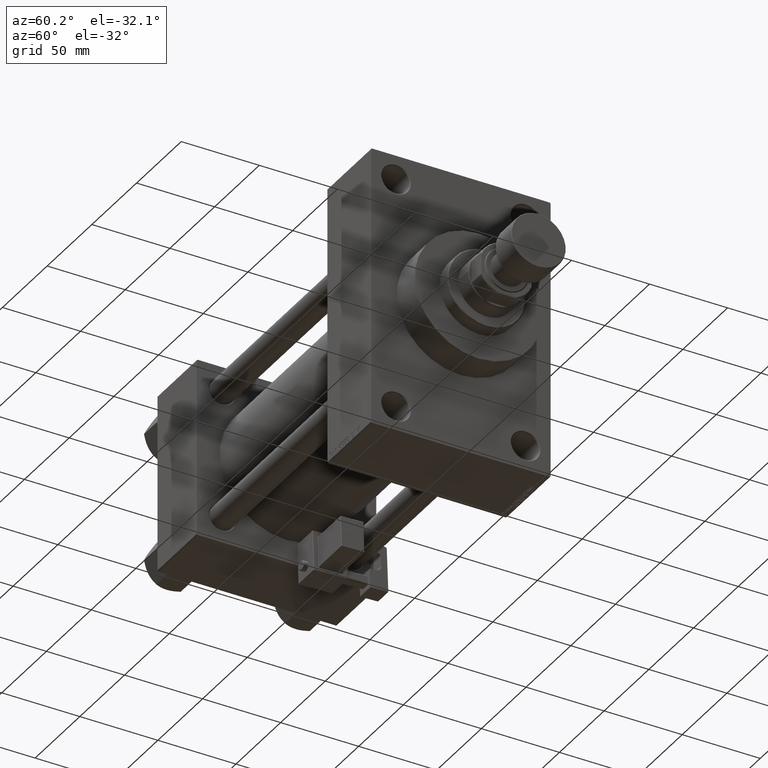
[diagram: clean part render]
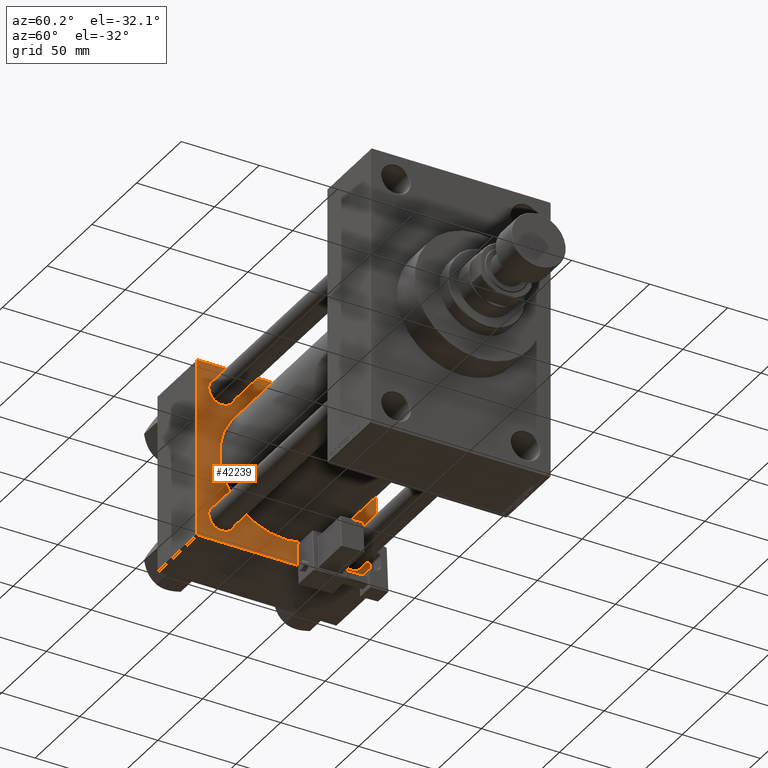
[diagram: same view with one face highlighted and labeled with its STEP entity id]
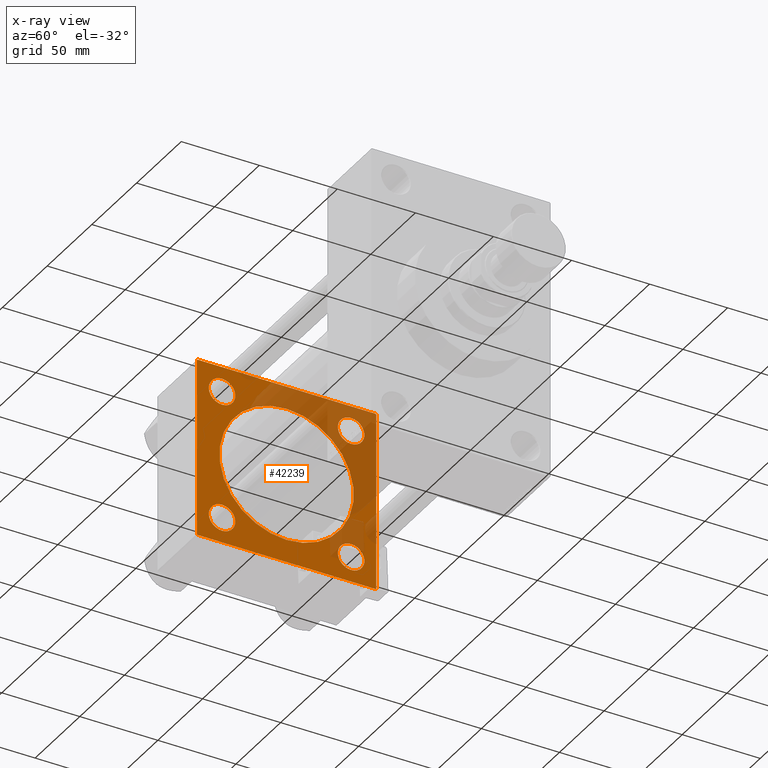
[diagram: x-ray of the same camera — body ghosted, the highlighted face saturated]
A machine part, auxiliary view. The second image highlights one B-rep face of the part: STEP entity #42239.
The next image is the same camera in x-ray: the body ghosted, the highlighted face saturated — about 37% of this face is hidden behind the body in this view.
In plain terms, the highlighted planar face has unit normal (-1, 0, 0).
Its self-contained STEP definition (entity closure, byte-faithful):
#417 = FACE_BOUND ( 'NONE', #47953, .T. ) ;
#763 = ORIENTED_EDGE ( 'NONE', *, *, #46704, .T. ) ;
#1151 = EDGE_LOOP ( 'NONE', ( #43784, #37410 ) ) ;
#1614 = DIRECTION ( 'NONE',  ( 1.000000000000000000, -0.000000000000000000, 0.000000000000000000 ) ) ;
#2433 = DIRECTION ( 'NONE',  ( -1.000000000000000000, 0.000000000000000000, -0.000000000000000000 ) ) ;
#2704 = CARTESIAN_POINT ( 'NONE',  ( 44.00000000000000000, 57.49999999999999289, 57.00000000000003553 ) ) ;
#3328 = AXIS2_PLACEMENT_3D ( 'NONE', #11751, #7929, #15062 ) ;
#3930 = DIRECTION ( 'NONE',  ( 0.000000000000000000, 0.000000000000000000, 1.000000000000000000 ) ) ;
#4238 = EDGE_CURVE ( 'NONE', #29951, #20423, #15501, .T. ) ;
#4721 = DIRECTION ( 'NONE',  ( -0.000000000000000000, 0.000000000000000000, 1.000000000000000000 ) ) ;
#5091 = VECTOR ( 'NONE', #8339, 1000.000000000000114 ) ;
#5114 = EDGE_CURVE ( 'NONE', #29951, #19369, #49882, .T. ) ;
#6272 = AXIS2_PLACEMENT_3D ( 'NONE', #44449, #2433, #29663 ) ;
#7119 = VERTEX_POINT ( 'NONE', #19654 ) ;
#7475 = LINE ( 'NONE', #42855, #19366 ) ;
#7929 = DIRECTION ( 'NONE',  ( -1.000000000000000000, 0.000000000000000000, -0.000000000000000000 ) ) ;
#7941 = EDGE_CURVE ( 'NONE', #28196, #19025, #19841, .T. ) ;
#8339 = DIRECTION ( 'NONE',  ( 0.000000000000000000, -0.7071067811865573427, 0.7071067811865376918 ) ) ;
#8430 = VECTOR ( 'NONE', #19068, 1000.000000000000000 ) ;
#8488 = CARTESIAN_POINT ( 'NONE',  ( 44.00000000000000000, 57.49999999999999289, -57.00000000000000711 ) ) ;
#8623 = VECTOR ( 'NONE', #22084, 1000.000000000000114 ) ;
#9122 = DIRECTION ( 'NONE',  ( -1.000000000000000000, 0.000000000000000000, -0.000000000000000000 ) ) ;
#9232 = DIRECTION ( 'NONE',  ( 0.000000000000000000, 0.7071067811865474617, -0.7071067811865474617 ) ) ;
#9476 = ORIENTED_EDGE ( 'NONE', *, *, #5114, .T. ) ;
#9745 = CARTESIAN_POINT ( 'NONE',  ( 43.99999999999998579, -2.602085213965210642E-15, 0.000000000000000000 ) ) ;
#9929 = DIRECTION ( 'NONE',  ( 0.000000000000000000, 0.000000000000000000, 1.000000000000000000 ) ) ;
#10110 = CARTESIAN_POINT ( 'NONE',  ( 44.00000000000000000, -41.34999999999998721, 32.85000000000000142 ) ) ;
#10185 = DIRECTION ( 'NONE',  ( -1.000000000000000000, 0.000000000000000000, -0.000000000000000000 ) ) ;
#10324 = DIRECTION ( 'NONE',  ( 0.000000000000000000, 0.000000000000000000, 1.000000000000000000 ) ) ;
#10335 = CIRCLE ( 'NONE', #48525, 8.500000000000007105 ) ;
#10340 = CARTESIAN_POINT ( 'NONE',  ( 44.00000000000000000, -57.50000000000000711, -57.00000000000000711 ) ) ;
#10891 = EDGE_CURVE ( 'NONE', #35753, #30050, #11843, .T. ) ;
#11142 = DIRECTION ( 'NONE',  ( -1.000000000000000000, 0.000000000000000000, -0.000000000000000000 ) ) ;
#11595 = CARTESIAN_POINT ( 'NONE',  ( 44.00000000000000000, 57.49999999999999289, 57.50000000000000711 ) ) ;
#11750 = CARTESIAN_POINT ( 'NONE',  ( 44.00000000000000000, 57.00000000000000711, 57.50000000000000711 ) ) ;
#11751 = CARTESIAN_POINT ( 'NONE',  ( 44.00000000000000000, -41.34999999999998721, 41.35000000000000853 ) ) ;
#11843 = LINE ( 'NONE', #11595, #45976 ) ;
#11882 = EDGE_LOOP ( 'NONE', ( #40092, #763 ) ) ;
#12115 = DIRECTION ( 'NONE',  ( -1.000000000000000000, 0.000000000000000000, -0.000000000000000000 ) ) ;
#13234 = CARTESIAN_POINT ( 'NONE',  ( 44.00000000000000000, 57.00000000000002132, -57.49999999999999289 ) ) ;
#13679 = CARTESIAN_POINT ( 'NONE',  ( 44.00000000000000000, 41.34999999999999432, -49.85000000000001563 ) ) ;
#14612 = ORIENTED_EDGE ( 'NONE', *, *, #44203, .F. ) ;
#14752 = CARTESIAN_POINT ( 'NONE',  ( 44.00000000000000000, 57.49999999999999289, -57.00000000000000711 ) ) ;
#14883 = DIRECTION ( 'NONE',  ( -1.000000000000000000, 0.000000000000000000, -0.000000000000000000 ) ) ;
#14964 = CARTESIAN_POINT ( 'NONE',  ( 44.00000000000000000, 41.34999999999999432, 41.35000000000000142 ) ) ;
#15056 = EDGE_CURVE ( 'NONE', #21563, #43236, #47695, .T. ) ;
#15062 = DIRECTION ( 'NONE',  ( 0.000000000000000000, 0.000000000000000000, 1.000000000000000000 ) ) ;
#15089 = EDGE_CURVE ( 'NONE', #46566, #15789, #44471, .T. ) ;
#15139 = DIRECTION ( 'NONE',  ( -1.000000000000000000, 0.000000000000000000, -0.000000000000000000 ) ) ;
#15501 = LINE ( 'NONE', #30268, #8430 ) ;
#15789 = VERTEX_POINT ( 'NONE', #28738 ) ;
#15892 = VERTEX_POINT ( 'NONE', #30251 ) ;
#16240 = VERTEX_POINT ( 'NONE', #2704 ) ;
#16663 = EDGE_CURVE ( 'NONE', #30866, #22646, #7475, .T. ) ;
#16875 = DIRECTION ( 'NONE',  ( -1.000000000000000000, 0.000000000000000000, -0.000000000000000000 ) ) ;
#16931 = ORIENTED_EDGE ( 'NONE', *, *, #7941, .T. ) ;
#17121 = CARTESIAN_POINT ( 'NONE',  ( 44.00000000000000000, -57.00000000000000711, -57.50000000000000711 ) ) ;
#18450 = ORIENTED_EDGE ( 'NONE', *, *, #31295, .T. ) ;
#18729 = VECTOR ( 'NONE', #49272, 1000.000000000000000 ) ;
#18910 = VERTEX_POINT ( 'NONE', #13679 ) ;
#19025 = VERTEX_POINT ( 'NONE', #48306 ) ;
#19068 = DIRECTION ( 'NONE',  ( 0.000000000000000000, -1.000000000000000000, -1.206764157201257045E-16 ) ) ;
#19366 = VECTOR ( 'NONE', #23004, 1000.000000000000000 ) ;
#19369 = VERTEX_POINT ( 'NONE', #8488 ) ;
#19593 = CARTESIAN_POINT ( 'NONE',  ( 44.00000000000000000, -41.34999999999998721, -41.35000000000000853 ) ) ;
#19654 = CARTESIAN_POINT ( 'NONE',  ( 44.00000000000000000, -41.34999999999998721, -32.85000000000000142 ) ) ;
#19841 = CIRCLE ( 'NONE', #32000, 8.500000000000007105 ) ;
#20003 = VECTOR ( 'NONE', #9232, 1000.000000000000114 ) ;
#20039 = CIRCLE ( 'NONE', #29768, 8.500000000000007105 ) ;
#20280 = AXIS2_PLACEMENT_3D ( 'NONE', #36272, #12115, #4721 ) ;
#20423 = VERTEX_POINT ( 'NONE', #32090 ) ;
#20579 = DIRECTION ( 'NONE',  ( 0.000000000000000000, 0.000000000000000000, 1.000000000000000000 ) ) ;
#20741 = PLANE ( 'NONE',  #20280 ) ;
#21563 = VERTEX_POINT ( 'NONE', #35764 ) ;
#22084 = DIRECTION ( 'NONE',  ( -0.000000000000000000, -0.7071067811865376918, -0.7071067811865573427 ) ) ;
#22470 = AXIS2_PLACEMENT_3D ( 'NONE', #34232, #14883, #30410 ) ;
#22646 = VERTEX_POINT ( 'NONE', #10340 ) ;
#22858 = DIRECTION ( 'NONE',  ( 0.000000000000000000, 0.000000000000000000, 1.000000000000000000 ) ) ;
#23004 = DIRECTION ( 'NONE',  ( 0.000000000000000000, 0.000000000000000000, -1.000000000000000000 ) ) ;
#23252 = EDGE_LOOP ( 'NONE', ( #36694, #9476, #14612, #49186, #48174, #18450, #45860, #27845 ) ) ;
#24284 = DIRECTION ( 'NONE',  ( 0.000000000000000000, 0.000000000000000000, 1.000000000000000000 ) ) ;
#24324 = FACE_BOUND ( 'NONE', #11882, .T. ) ;
#24467 = CARTESIAN_POINT ( 'NONE',  ( 44.00000000000000000, -41.34999999999998721, -49.85000000000002274 ) ) ;
#24745 = ORIENTED_EDGE ( 'NONE', *, *, #37523, .F. ) ;
#25772 = EDGE_LOOP ( 'NONE', ( #33519, #47288 ) ) ;
#25794 = AXIS2_PLACEMENT_3D ( 'NONE', #33481, #32731, #10324 ) ;
#25960 = CARTESIAN_POINT ( 'NONE',  ( 44.00000000000000000, -57.00000000000003553, 57.49999999999999289 ) ) ;
#26115 = LINE ( 'NONE', #33479, #18729 ) ;
#27014 = EDGE_CURVE ( 'NONE', #43236, #21563, #39092, .T. ) ;
#27103 = CARTESIAN_POINT ( 'NONE',  ( 44.00000000000000000, -57.50000000000000711, 57.00000000000000711 ) ) ;
#27540 = CIRCLE ( 'NONE', #45444, 43.00000000000000000 ) ;
#27845 = ORIENTED_EDGE ( 'NONE', *, *, #30959, .T. ) ;
#28196 = VERTEX_POINT ( 'NONE', #32276 ) ;
#28738 = CARTESIAN_POINT ( 'NONE',  ( 43.99999999999998579, -2.602085213965210642E-15, 43.00000000000000000 ) ) ;
#29663 = DIRECTION ( 'NONE',  ( 0.000000000000000000, 0.000000000000000000, 1.000000000000000000 ) ) ;
#29768 = AXIS2_PLACEMENT_3D ( 'NONE', #37669, #10185, #9929 ) ;
#29951 = VERTEX_POINT ( 'NONE', #13234 ) ;
#30030 = CIRCLE ( 'NONE', #38137, 8.500000000000007105 ) ;
#30050 = VERTEX_POINT ( 'NONE', #25960 ) ;
#30251 = CARTESIAN_POINT ( 'NONE',  ( 44.00000000000000000, 41.34999999999999432, -32.84999999999999432 ) ) ;
#30268 = CARTESIAN_POINT ( 'NONE',  ( 44.00000000000000000, 57.49999999999999289, -57.49999999999999289 ) ) ;
#30410 = DIRECTION ( 'NONE',  ( 0.000000000000000000, 0.000000000000000000, 1.000000000000000000 ) ) ;
#30866 = VERTEX_POINT ( 'NONE', #27103 ) ;
#30959 = EDGE_CURVE ( 'NONE', #22646, #20423, #43610, .T. ) ;
#31295 = EDGE_CURVE ( 'NONE', #30050, #30866, #49321, .T. ) ;
#31605 = EDGE_CURVE ( 'NONE', #18910, #15892, #48488, .T. ) ;
#32000 = AXIS2_PLACEMENT_3D ( 'NONE', #14964, #11142, #22858 ) ;
#32045 = EDGE_CURVE ( 'NONE', #15892, #18910, #20039, .T. ) ;
#32090 = CARTESIAN_POINT ( 'NONE',  ( 44.00000000000000000, -57.00000000000000711, -57.50000000000000711 ) ) ;
#32276 = CARTESIAN_POINT ( 'NONE',  ( 44.00000000000000000, 41.34999999999999432, 49.85000000000001563 ) ) ;
#32731 = DIRECTION ( 'NONE',  ( 1.000000000000000000, -0.000000000000000000, 0.000000000000000000 ) ) ;
#32818 = EDGE_CURVE ( 'NONE', #19025, #28196, #10335, .T. ) ;
#33479 = CARTESIAN_POINT ( 'NONE',  ( 44.00000000000000000, 57.49999999999999289, 57.50000000000000711 ) ) ;
#33481 = CARTESIAN_POINT ( 'NONE',  ( 43.99999999999998579, -2.602085213965210642E-15, 0.000000000000000000 ) ) ;
#33519 = ORIENTED_EDGE ( 'NONE', *, *, #31605, .T. ) ;
#33644 = VECTOR ( 'NONE', #46064, 1000.000000000000114 ) ;
#33718 = CARTESIAN_POINT ( 'NONE',  ( 43.99999999999998579, 2.663896022368408223E-15, -43.00000000000000000 ) ) ;
#33986 = ORIENTED_EDGE ( 'NONE', *, *, #15089, .F. ) ;
#34232 = CARTESIAN_POINT ( 'NONE',  ( 44.00000000000000000, 41.34999999999999432, -41.35000000000000142 ) ) ;
#34233 = CARTESIAN_POINT ( 'NONE',  ( 44.00000000000000000, -41.34999999999998721, -41.35000000000000853 ) ) ;
#35290 = FACE_OUTER_BOUND ( 'NONE', #23252, .T. ) ;
#35753 = VERTEX_POINT ( 'NONE', #11750 ) ;
#35764 = CARTESIAN_POINT ( 'NONE',  ( 44.00000000000000000, -41.34999999999998721, 49.85000000000002274 ) ) ;
#36070 = LINE ( 'NONE', #43713, #5091 ) ;
#36272 = CARTESIAN_POINT ( 'NONE',  ( 44.00000000000000000, 0.000000000000000000, 0.000000000000000000 ) ) ;
#36694 = ORIENTED_EDGE ( 'NONE', *, *, #4238, .F. ) ;
#37410 = ORIENTED_EDGE ( 'NONE', *, *, #15056, .T. ) ;
#37523 = EDGE_CURVE ( 'NONE', #15789, #46566, #27540, .T. ) ;
#37669 = CARTESIAN_POINT ( 'NONE',  ( 44.00000000000000000, 41.34999999999999432, -41.35000000000000142 ) ) ;
#37690 = EDGE_CURVE ( 'NONE', #47107, #7119, #30030, .T. ) ;
#38137 = AXIS2_PLACEMENT_3D ( 'NONE', #19593, #9122, #20579 ) ;
#38617 = CARTESIAN_POINT ( 'NONE',  ( 44.00000000000000000, -57.50000000000000711, 57.00000000000000711 ) ) ;
#39092 = CIRCLE ( 'NONE', #3328, 8.500000000000007105 ) ;
#39843 = FACE_BOUND ( 'NONE', #25772, .T. ) ;
#40092 = ORIENTED_EDGE ( 'NONE', *, *, #37690, .T. ) ;
#42239 = ADVANCED_FACE ( 'NONE', ( #24324, #39843, #47485, #43421, #417, #35290 ), #20741, .F. ) ;
#42855 = CARTESIAN_POINT ( 'NONE',  ( 44.00000000000000000, -57.50000000000000711, 57.49999999999999289 ) ) ;
#43098 = EDGE_LOOP ( 'NONE', ( #48956, #16931 ) ) ;
#43189 = CIRCLE ( 'NONE', #49694, 8.500000000000007105 ) ;
#43236 = VERTEX_POINT ( 'NONE', #10110 ) ;
#43421 = FACE_BOUND ( 'NONE', #43098, .T. ) ;
#43610 = LINE ( 'NONE', #17121, #20003 ) ;
#43713 = CARTESIAN_POINT ( 'NONE',  ( 44.00000000000000000, 57.00000000000000711, 57.50000000000000711 ) ) ;
#43784 = ORIENTED_EDGE ( 'NONE', *, *, #27014, .T. ) ;
#44119 = DIRECTION ( 'NONE',  ( 0.000000000000000000, 0.000000000000000000, 1.000000000000000000 ) ) ;
#44203 = EDGE_CURVE ( 'NONE', #16240, #19369, #26115, .T. ) ;
#44449 = CARTESIAN_POINT ( 'NONE',  ( 44.00000000000000000, -41.34999999999998721, 41.35000000000000853 ) ) ;
#44471 = CIRCLE ( 'NONE', #25794, 43.00000000000000000 ) ;
#45444 = AXIS2_PLACEMENT_3D ( 'NONE', #9745, #1614, #24284 ) ;
#45860 = ORIENTED_EDGE ( 'NONE', *, *, #16663, .T. ) ;
#45976 = VECTOR ( 'NONE', #46222, 1000.000000000000000 ) ;
#46064 = DIRECTION ( 'NONE',  ( -0.000000000000000000, 0.7071067811865376918, 0.7071067811865573427 ) ) ;
#46222 = DIRECTION ( 'NONE',  ( 0.000000000000000000, -1.000000000000000000, -1.206764157201257045E-16 ) ) ;
#46566 = VERTEX_POINT ( 'NONE', #33718 ) ;
#46704 = EDGE_CURVE ( 'NONE', #7119, #47107, #43189, .T. ) ;
#47107 = VERTEX_POINT ( 'NONE', #24467 ) ;
#47288 = ORIENTED_EDGE ( 'NONE', *, *, #32045, .T. ) ;
#47485 = FACE_BOUND ( 'NONE', #1151, .T. ) ;
#47695 = CIRCLE ( 'NONE', #6272, 8.500000000000007105 ) ;
#47937 = CARTESIAN_POINT ( 'NONE',  ( 44.00000000000000000, 41.34999999999999432, 41.35000000000000142 ) ) ;
#47953 = EDGE_LOOP ( 'NONE', ( #24745, #33986 ) ) ;
#48174 = ORIENTED_EDGE ( 'NONE', *, *, #10891, .T. ) ;
#48306 = CARTESIAN_POINT ( 'NONE',  ( 44.00000000000000000, 41.34999999999999432, 32.84999999999999432 ) ) ;
#48488 = CIRCLE ( 'NONE', #22470, 8.500000000000007105 ) ;
#48525 = AXIS2_PLACEMENT_3D ( 'NONE', #47937, #16875, #44119 ) ;
#48956 = ORIENTED_EDGE ( 'NONE', *, *, #32818, .T. ) ;
#49186 = ORIENTED_EDGE ( 'NONE', *, *, #49419, .T. ) ;
#49272 = DIRECTION ( 'NONE',  ( 0.000000000000000000, 0.000000000000000000, -1.000000000000000000 ) ) ;
#49321 = LINE ( 'NONE', #38617, #8623 ) ;
#49419 = EDGE_CURVE ( 'NONE', #16240, #35753, #36070, .T. ) ;
#49694 = AXIS2_PLACEMENT_3D ( 'NONE', #34233, #15139, #3930 ) ;
#49882 = LINE ( 'NONE', #14752, #33644 ) ;